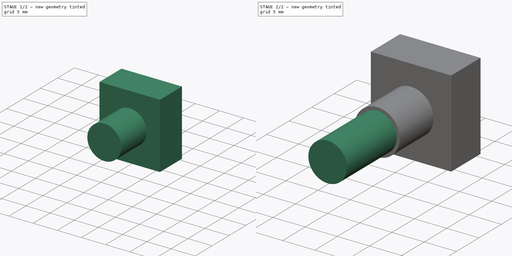
[diagram: build sequence overview — one tinted view per stage of 2, left to right]
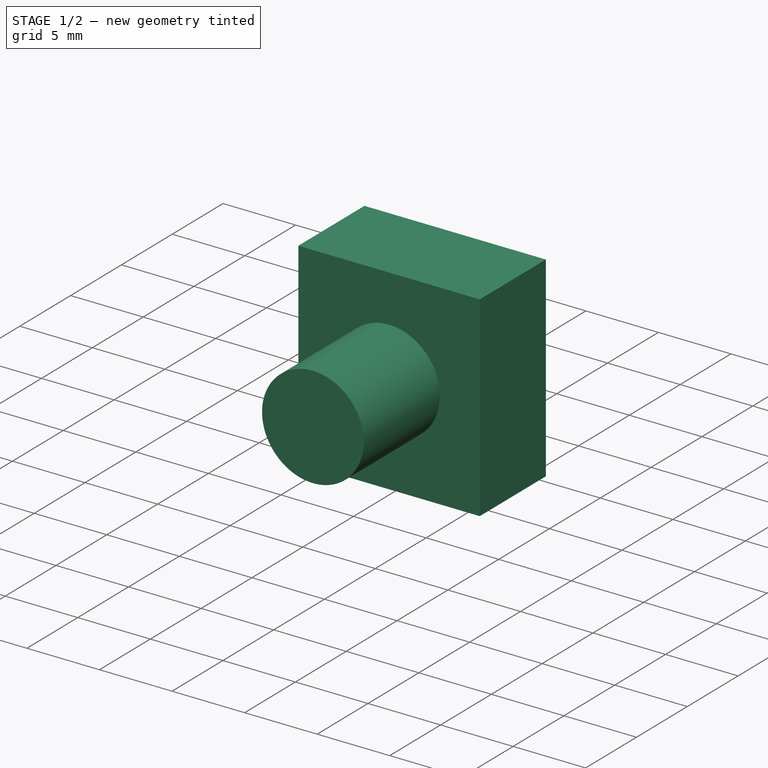
[diagram: stage 1 of 2 — iso view after this stage's code; geometry added in this stage tinted green]
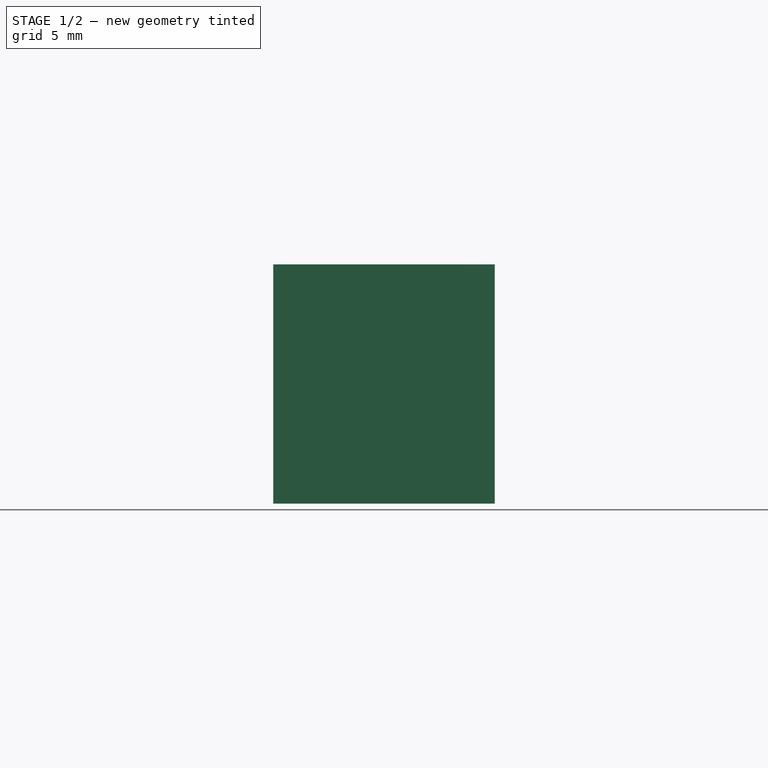
[diagram: stage 1 of 2 — front view after this stage's code; geometry added in this stage tinted green]
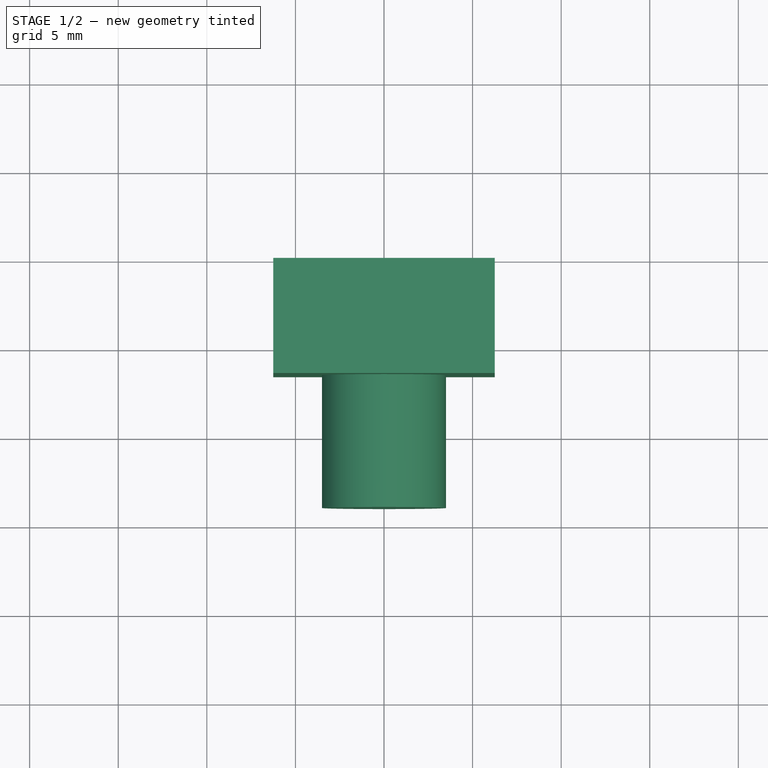
[diagram: stage 1 of 2 — top view after this stage's code; geometry added in this stage tinted green]
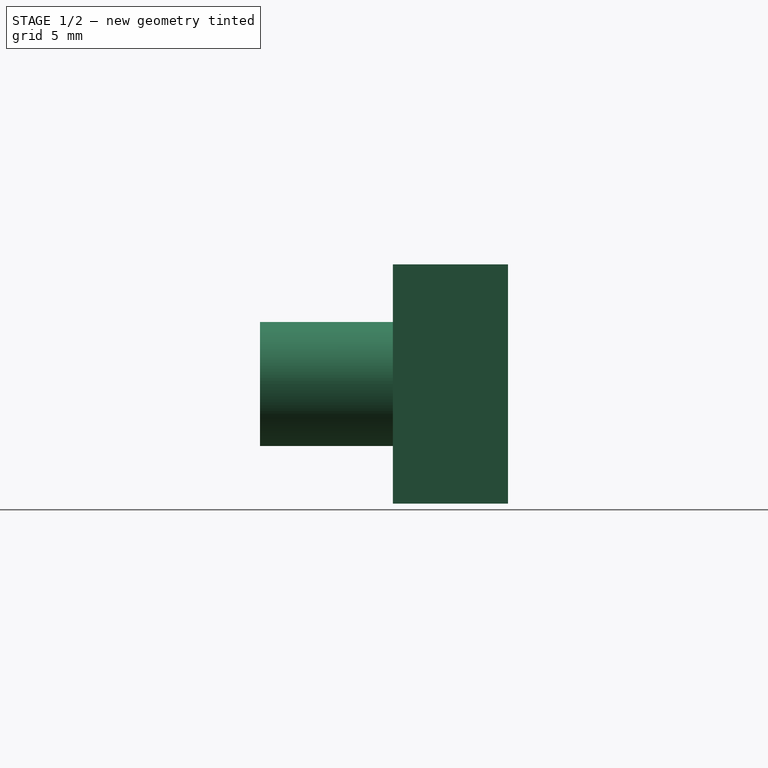
[diagram: stage 1 of 2 — right view after this stage's code; geometry added in this stage tinted green]
FCSTD DOCUMENT  (FreeCAD 0.20R28730 (Git))
Label: PCB
License: All rights reserved
LicenseURL: http://en.wikipedia.org/wiki/All_rights_reserved
objects: Part::Feature×7, App::Part×6, Sketcher::SketchObject×4, PartDesign::Pad×3, PartDesign::CoordinateSystem×1, PartDesign::Body×1
note: 19 computed .brp shape members not serialized (recipe doc carries the construction recipe); baked Part::Feature solids carry a one-line shape summary decoded from their .brp

FEATURE [Part::Feature] Part__Feature  label="COMPOUND"
  shape: bbox 11.5 x 6 x 9.6 mm, 10 faces (baked)
FEATURE [Part::Feature] Part__Feature001  label="COMPOUND001"
  shape: bbox 9 x 1.5 x 6 mm, 14 faces (baked)
FEATURE [App::Part] COMPOUND  label="COMPOUND002"
  Group = -> [Part__Feature,Part__Feature001]
  Origin = -> Origin
FEATURE [App::Part] PDSE1_DCDC
  Group = -> [COMPOUND]
  Origin = -> Origin001
  Placement = pos=(3.3075,7.8425,1.65) rot=(0,0,1;3.14159rad)
FEATURE [Part::Feature] Part__Feature002  label="COMPOUND003"
  shape: bbox 43 x 1.2 x 38.37 mm, 23 faces (baked)
FEATURE [Part::Feature] Part__Feature003  label="COMPOUND004"
  shape: bbox 42.4 x 1.8 x 27.5 mm, 11 faces (baked)
FEATURE [Part::Feature] Part__Feature004  label="COMPOUND005"
  shape: bbox 17.78 x 14 x 2.54 mm, 172 faces (baked)
FEATURE [App::Part] COMPOUND001  label="COMPOUND006"
  Group = -> [Part__Feature002,Part__Feature003,Part__Feature004]
  Origin = -> Origin002
FEATURE [App::Part] OLED_SSD1306_1_54
  Group = -> [COMPOUND001]
  Origin = -> Origin003
  Placement = pos=(0,5e-16,-3.95) rot=(0,0.707107,0.707107;3.14159rad)
FEATURE [Part::Feature] Part__Feature005  label="SOLID"
  shape: bbox 20.2 x 20.2 x 22.2 mm, 111 faces (baked)
FEATURE [App::Part] RPC1_12RB_6P  label="RPC1-12RB-6P"
  Group = -> [Part__Feature005]
  Origin = -> Origin004
  Placement = pos=(40,8e-16,-6.3) rot=(0,0,1;0rad)
FEATURE [Part::Feature] Part__Feature007  label="openSolderV0.2 PCB"
  shape: bbox 100 x 44 x 1.6 mm, 68 faces (baked)
FEATURE [Sketcher::SketchObject] Sketch
  AttachmentOffset = pos=(0,0,-7) rot=(0,0,1;0rad)
  FullyConstrained = true
  MapMode = 5
  Placement = pos=(0,0,-7) rot=(0,0,1;0rad)
  Support = -> [XY_Plane006]
  sketch-geometry (3):
    g0: Circle CenterX=-40 CenterY=0 CenterZ=0 NormalX=0 NormalY=0 NormalZ=1 AngleXU=0 Radius=5
    g1: Circle CenterX=40 CenterY=0 CenterZ=0 NormalX=0 NormalY=0 NormalZ=1 AngleXU=0 Radius=5
    g2: Circle CenterX=40 CenterY=0 CenterZ=0 NormalX=0 NormalY=0 NormalZ=1 AngleXU=0 Radius=10
  constraints (7):
    c: PointOnObject(g1,g-1)
    c: Coincident(g2,g1)
    c: Symmetric(g0,g1,g-2)
    c: DistanceX(g0,g1) = 80
    c: Equal(g1,g0)
    c: Diameter(g1) = 10
    c: Diameter(g2) = 20
FEATURE [PartDesign::CoordinateSystem] LCS_PCBA
  AttacherType = Attacher::AttachEngine3D
  MapMode = 11
  Placement = pos=(-40,0,-7) rot=(0,0,1;1.5708rad)
  Support = -> [Sketch]
FEATURE [Sketcher::SketchObject] Sketch001
  FullyConstrained = true
  MapMode = 5
  Placement = pos=(0,0,0) rot=(1,0,0;1.5708rad)
  Support = -> [XZ_Plane007]
  sketch-geometry (5):
    g0: LineSegment StartX=-6.25 StartY=-6.75 StartZ=0 EndX=-6.25 EndY=6.75 EndZ=0
    g1: LineSegment StartX=-6.25 StartY=6.75 StartZ=0 EndX=6.25 EndY=6.75 EndZ=0
    g2: LineSegment StartX=6.25 StartY=6.75 StartZ=0 EndX=6.25 EndY=-6.75 EndZ=0
    g3: LineSegment StartX=6.25 StartY=-6.75 StartZ=0 EndX=-6.25 EndY=-6.75 EndZ=0
    g4: GeomPoint X=0 Y=0 Z=0
  constraints (12):
    c: Coincident(g0,g1)
    c: Coincident(g1,g2)
    c: Coincident(g2,g3)
    c: Coincident(g3,g0)
    c: Horizontal(g1)
    c: Horizontal(g3)
    c: Vertical(g0)
    c: Vertical(g2)
    c: Symmetric(g1,g0,g4)
    c: Coincident(g4,g-1)
    c: DistanceY(g2,g2) = 13.5
    c: DistanceX(g1,g1) = 12.5
FEATURE [PartDesign::Pad] Pad
  Direction = (0,-1,2e-16)
  Length = 6.5
  Length2 = 10
  Placement = pos=(0,0,0) rot=(1,0,0;1.5708rad)
  Profile = -> Sketch001
  ReferenceAxis = -> Sketch001 [N_Axis]
  Refine = true
  Type = 0
FEATURE [Sketcher::SketchObject] Sketch002
  FullyConstrained = true
  MapMode = 5
  Placement = pos=(0,0,0) rot=(1,0,0;1.5708rad)
  Support = -> [XZ_Plane007]
  sketch-geometry (1):
    g0: Circle CenterX=0 CenterY=0 CenterZ=0 NormalX=0 NormalY=0 NormalZ=1 AngleXU=0 Radius=3.5
  constraints (2):
    c: Coincident(g0,g-1)
    c: Diameter(g0) = 7
FEATURE [PartDesign::Pad] Pad001
  BaseFeature = -> Pad
  Direction = (0,-1,2e-16)
  Length = 14
  Length2 = 10
  Placement = pos=(0,0,0) rot=(1,0,0;1.5708rad)
  Profile = -> Sketch002
  ReferenceAxis = -> Sketch002 [N_Axis]
  Refine = true
  Type = 0
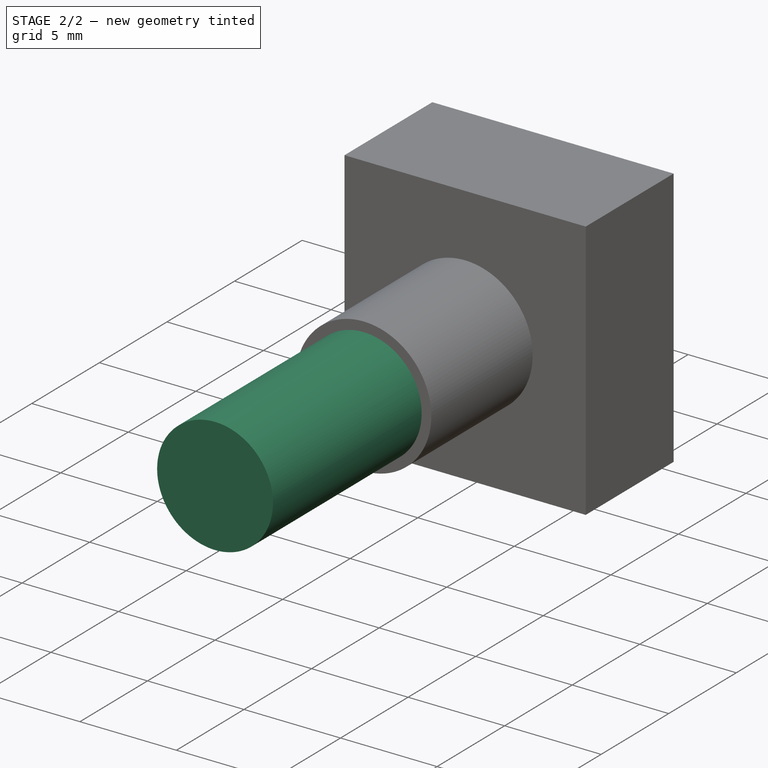
[diagram: stage 2 of 2 — iso view after this stage's code; geometry added in this stage tinted green]
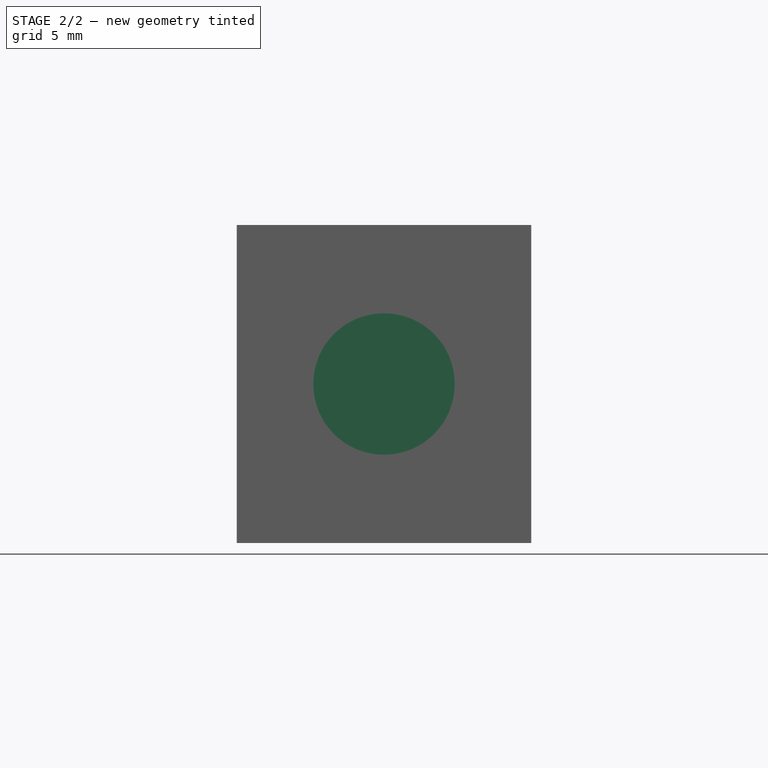
[diagram: stage 2 of 2 — front view after this stage's code; geometry added in this stage tinted green]
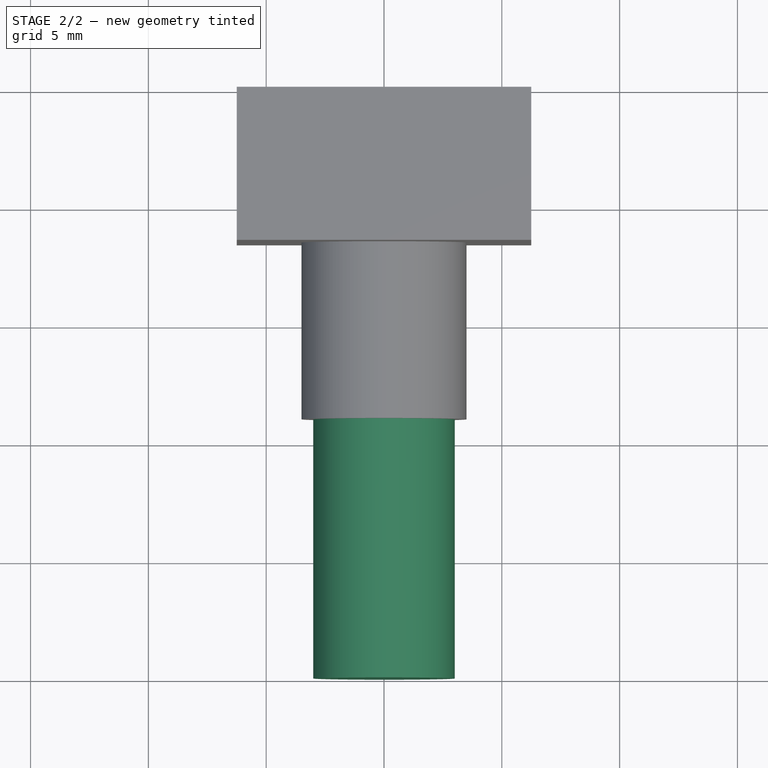
[diagram: stage 2 of 2 — top view after this stage's code; geometry added in this stage tinted green]
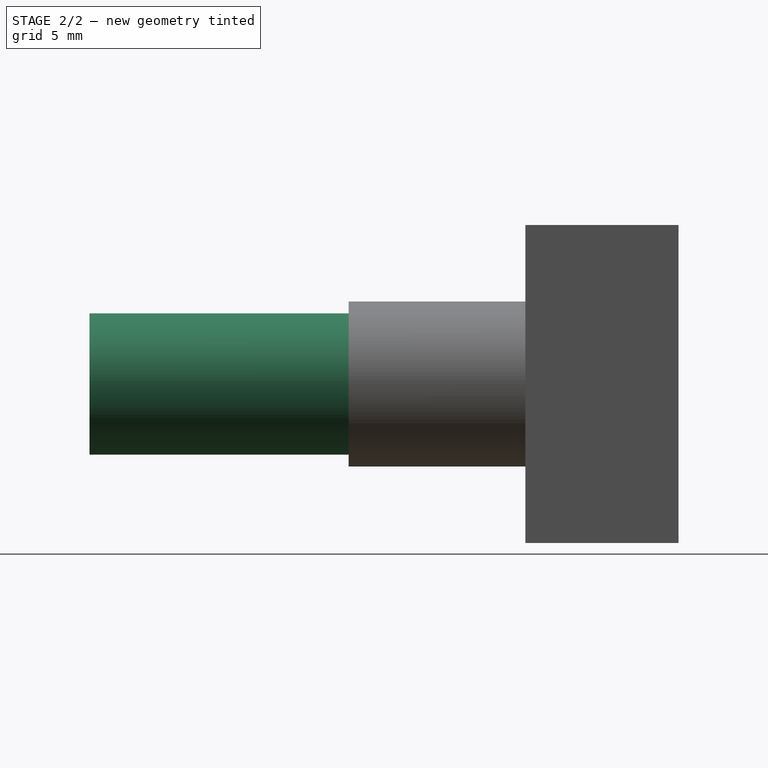
[diagram: stage 2 of 2 — right view after this stage's code; geometry added in this stage tinted green]
FEATURE [Sketcher::SketchObject] Sketch003
  FullyConstrained = true
  MapMode = 5
  Placement = pos=(0,0,0) rot=(1,0,0;1.5708rad)
  Support = -> [XZ_Plane007]
  sketch-geometry (1):
    g0: Circle CenterX=0 CenterY=0 CenterZ=0 NormalX=0 NormalY=0 NormalZ=1 AngleXU=0 Radius=3
  constraints (2):
    c: Coincident(g0,g-1)
    c: Diameter(g0) = 6
FEATURE [PartDesign::Pad] Pad002
  BaseFeature = -> Pad001
  Direction = (0,-1,2e-16)
  Length = 25
  Length2 = 10
  Placement = pos=(0,0,0) rot=(1,0,0;1.5708rad)
  Profile = -> Sketch003
  ReferenceAxis = -> Sketch003 [N_Axis]
  Refine = true
  Type = 0
FEATURE [PartDesign::Body] Body  label="PEC11R"
  Group = -> [Sketch001,Pad,Sketch002,Pad001,Sketch003,Pad002]
  Origin = -> Origin007
  Placement = pos=(-40,0,0) rot=(1,0,0;1.5708rad)
  Tip = -> Pad002
FEATURE [App::Part] openSolderV0_2_1  label="openSolderV0.2_PCBA"
  Group = -> [PDSE1_DCDC,OLED_SSD1306_1_54,RPC1_12RB_6P,Part__Feature007,Body,Sketch,LCS_PCBA]
  Origin = -> Origin006
  Placement = pos=(0,0,0) rot=(0,0.707107,0.707107;3.14159rad)
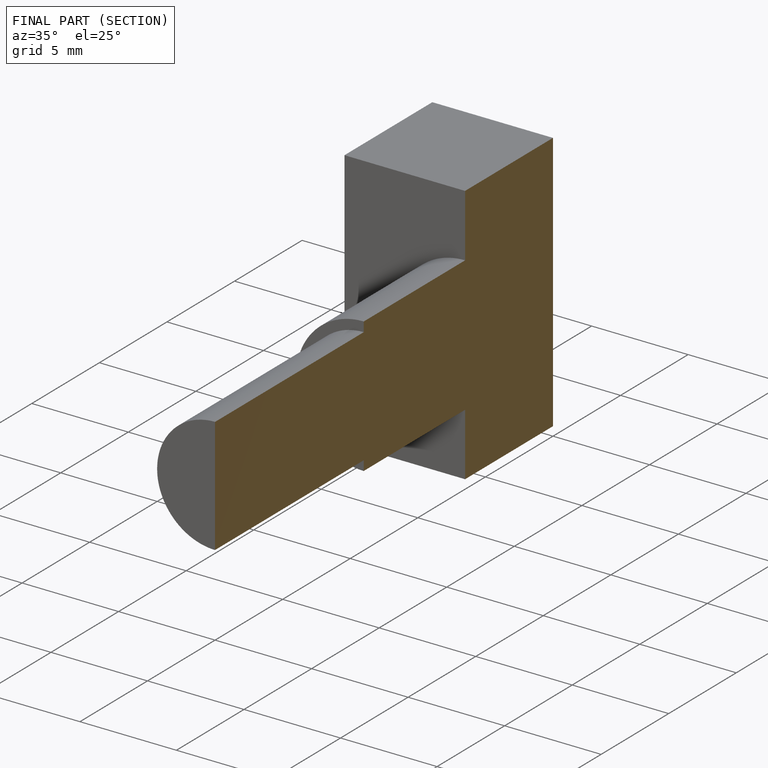
[diagram: finished part — half-section view (interior)]
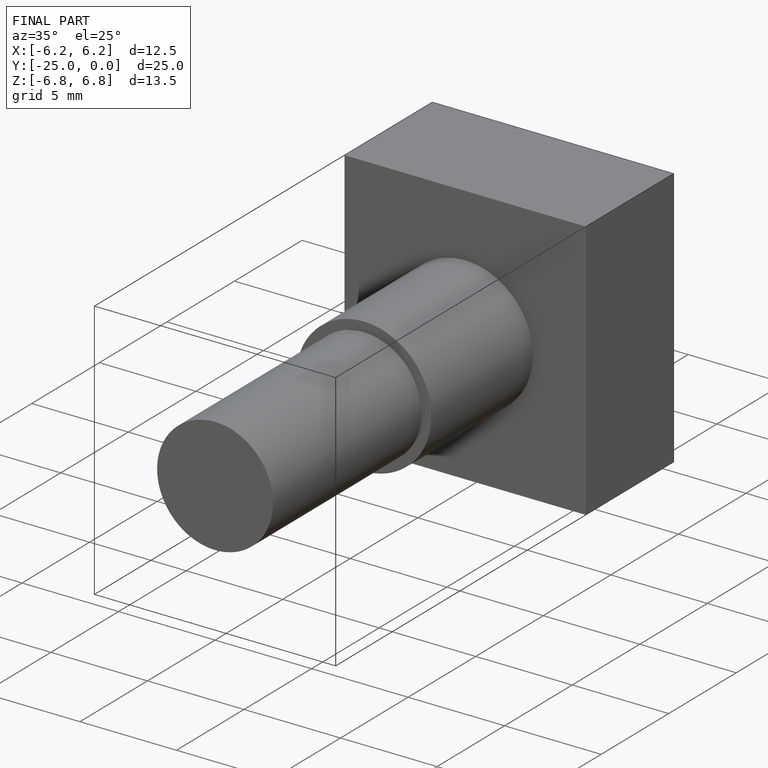
[diagram: finished part — iso view with bounding-box wireframe]
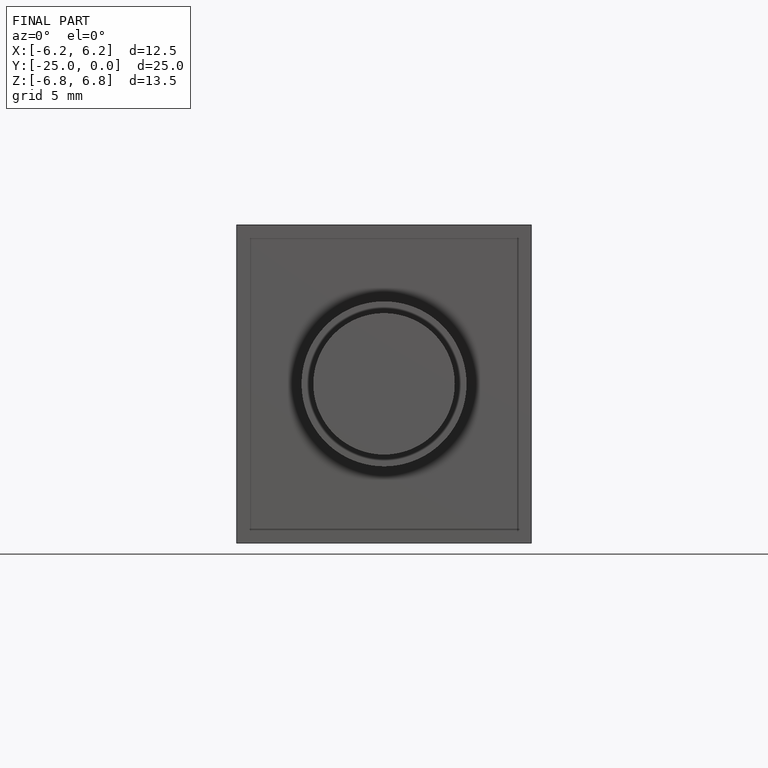
[diagram: finished part — front view with bounding-box wireframe]
